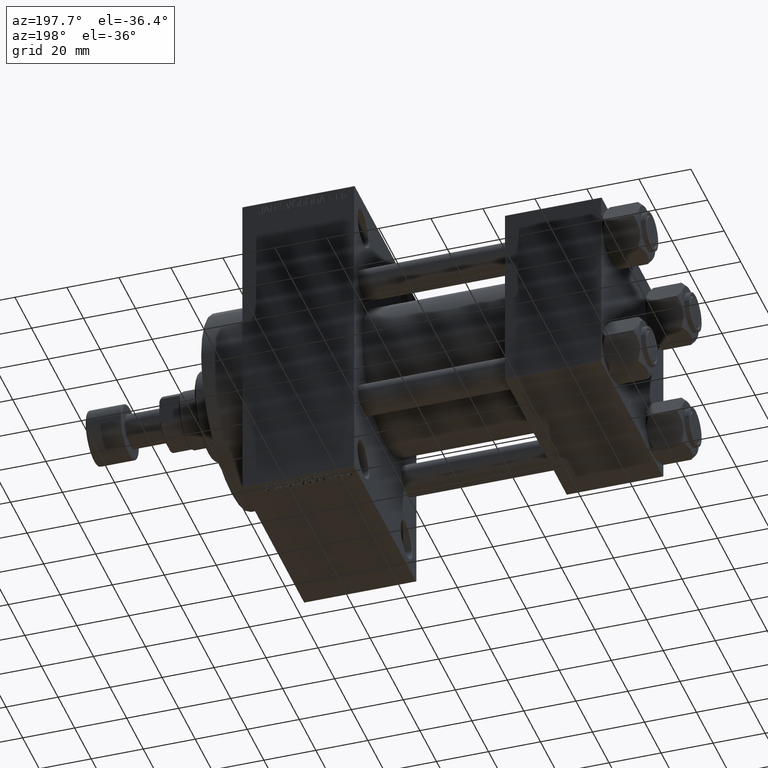
[diagram: clean part render]
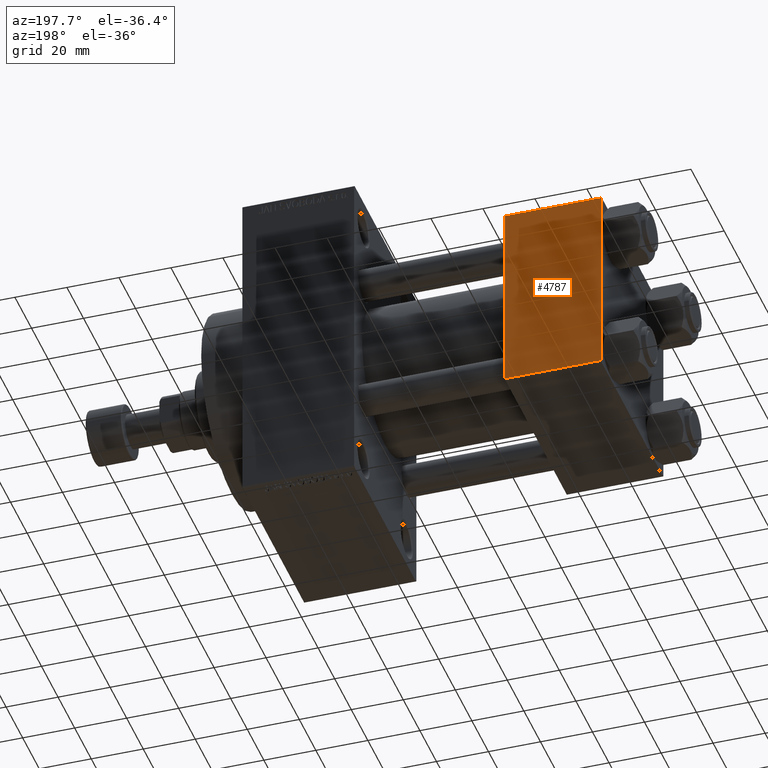
[diagram: same view with one face highlighted and labeled with its STEP entity id]
A machine part, auxiliary view. The second image highlights one B-rep face of the part: STEP entity #4787.
In plain terms, the highlighted planar face has unit normal (0, 1, 0).
Its self-contained STEP definition (entity closure, byte-faithful):
#520 = CARTESIAN_POINT ( 'NONE',  ( 0.000000000000000000, 37.49999999999999289, 37.50000000000000000 ) ) ;
#1871 = EDGE_CURVE ( 'NONE', #45384, #46460, #17718, .T. ) ;
#2413 = CARTESIAN_POINT ( 'NONE',  ( 37.00000000000000000, 37.49999999999999289, 37.50000000000000000 ) ) ;
#4787 = ADVANCED_FACE ( 'NONE', ( #46393 ), #6751, .T. ) ;
#6751 = PLANE ( 'NONE',  #45517 ) ;
#7726 = CARTESIAN_POINT ( 'NONE',  ( 37.00000000000000000, 37.49999999999999289, -36.99999999999998579 ) ) ;
#9660 = DIRECTION ( 'NONE',  ( 0.000000000000000000, -0.000000000000000000, 1.000000000000000000 ) ) ;
#9860 = VERTEX_POINT ( 'NONE', #37300 ) ;
#11089 = ORIENTED_EDGE ( 'NONE', *, *, #11107, .T. ) ;
#11107 = EDGE_CURVE ( 'NONE', #46460, #9860, #17290, .T. ) ;
#11161 = LINE ( 'NONE', #520, #23460 ) ;
#12674 = ORIENTED_EDGE ( 'NONE', *, *, #39292, .T. ) ;
#15267 = DIRECTION ( 'NONE',  ( 0.000000000000000000, 0.000000000000000000, -1.000000000000000000 ) ) ;
#15313 = CARTESIAN_POINT ( 'NONE',  ( 37.00000000000000000, 37.49999999999999289, 37.00000000000000000 ) ) ;
#17290 = LINE ( 'NONE', #35181, #23324 ) ;
#17718 = LINE ( 'NONE', #36551, #32287 ) ;
#20781 = CARTESIAN_POINT ( 'NONE',  ( 37.00000000000000000, 37.49999999999999289, 37.00000000000000000 ) ) ;
#23324 = VECTOR ( 'NONE', #35886, 1000.000000000000000 ) ;
#23460 = VECTOR ( 'NONE', #15267, 1000.000000000000000 ) ;
#23479 = ORIENTED_EDGE ( 'NONE', *, *, #40376, .F. ) ;
#25837 = ORIENTED_EDGE ( 'NONE', *, *, #1871, .T. ) ;
#28992 = DIRECTION ( 'NONE',  ( -0.000000000000000000, 1.000000000000000000, 0.000000000000000000 ) ) ;
#32287 = VECTOR ( 'NONE', #47187, 1000.000000000000000 ) ;
#35181 = CARTESIAN_POINT ( 'NONE',  ( 37.00000000000000000, 37.49999999999999289, -36.99999999999998579 ) ) ;
#35886 = DIRECTION ( 'NONE',  ( -1.000000000000000000, 0.000000000000000000, 0.000000000000000000 ) ) ;
#36551 = CARTESIAN_POINT ( 'NONE',  ( 37.00000000000000000, 37.49999999999999289, 37.50000000000000000 ) ) ;
#37300 = CARTESIAN_POINT ( 'NONE',  ( 0.000000000000000000, 37.49999999999999289, -36.99999999999998579 ) ) ;
#38127 = VECTOR ( 'NONE', #40930, 1000.000000000000000 ) ;
#39292 = EDGE_CURVE ( 'NONE', #44712, #45384, #44559, .T. ) ;
#40376 = EDGE_CURVE ( 'NONE', #44712, #9860, #11161, .T. ) ;
#40930 = DIRECTION ( 'NONE',  ( 1.000000000000000000, 0.000000000000000000, 0.000000000000000000 ) ) ;
#44310 = EDGE_LOOP ( 'NONE', ( #25837, #11089, #23479, #12674 ) ) ;
#44559 = LINE ( 'NONE', #15313, #38127 ) ;
#44712 = VERTEX_POINT ( 'NONE', #47038 ) ;
#45384 = VERTEX_POINT ( 'NONE', #20781 ) ;
#45517 = AXIS2_PLACEMENT_3D ( 'NONE', #2413, #28992, #9660 ) ;
#46393 = FACE_OUTER_BOUND ( 'NONE', #44310, .T. ) ;
#46460 = VERTEX_POINT ( 'NONE', #7726 ) ;
#47038 = CARTESIAN_POINT ( 'NONE',  ( 0.000000000000000000, 37.49999999999999289, 37.00000000000000000 ) ) ;
#47187 = DIRECTION ( 'NONE',  ( 0.000000000000000000, 0.000000000000000000, -1.000000000000000000 ) ) ;